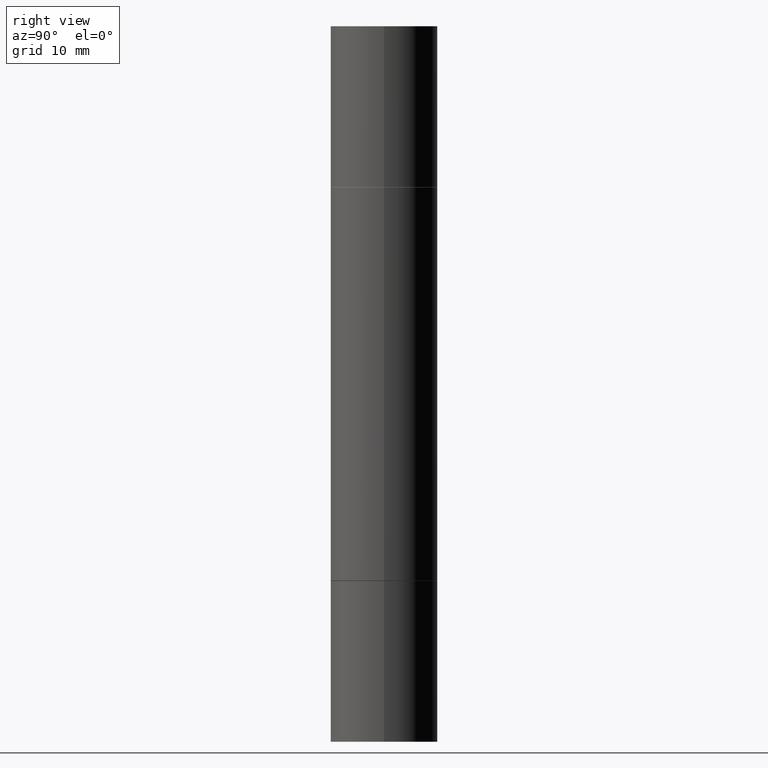
[diagram: clean part render]
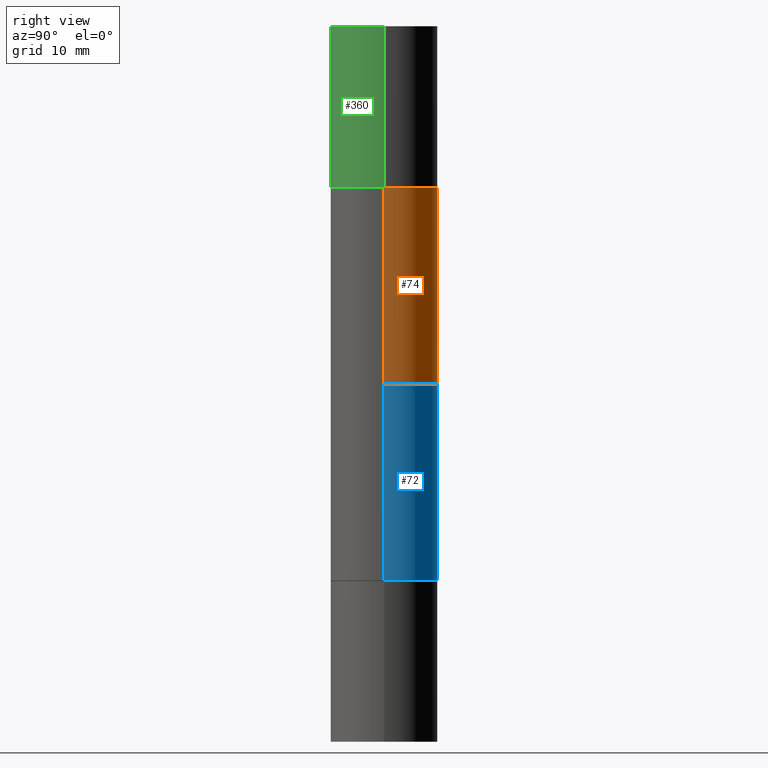
[diagram: same view with three faces highlighted in distinct colors, each labeled with its STEP entity id]
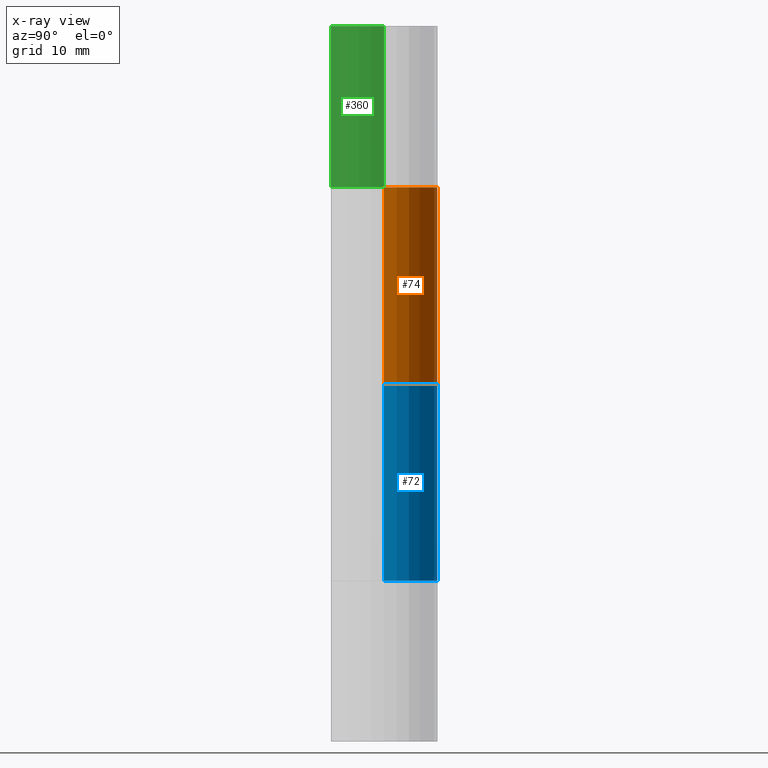
[diagram: x-ray of the same camera — body ghosted, the three highlighted faces saturated]
A machine part, right view with three faces highlighted in distinct colors.
The next image is the same camera in x-ray (body ghosted, the three faces saturated) — at least one of them is partly hidden behind the body in this view.
Their STEP definitions:

[orange] entity #74 — the highlighted cylindrical surface (partial cylindrical patch) has radius 4.7625 mm, axis along (-0, -0, -1).
#15 = DIRECTION ( 'NONE',  ( 1.000000000000000000, -6.982962677686266711E-15, 0.000000000000000000 ) ) ;
#30 = DIRECTION ( 'NONE',  ( -2.445468806185136597E-29, -3.492890411551752677E-15, -1.000000000000000000 ) ) ;
#44 = LINE ( 'NONE', #402, #575 ) ;
#74 = ADVANCED_FACE ( 'NONE', ( #556 ), #290, .T. ) ;
#78 = CARTESIAN_POINT ( 'NONE',  ( 0.000000000000000000, -8.730464687993621641E-15, -2.499999999999999556 ) ) ;
#93 = AXIS2_PLACEMENT_3D ( 'NONE', #78, #30, #665 ) ;
#102 = CARTESIAN_POINT ( 'NONE',  ( 0.1875000000000000278, -3.274041462884052574E-15, -0.5629999999999997229 ) ) ;
#126 = VERTEX_POINT ( 'NONE', #405 ) ;
#153 = EDGE_CURVE ( 'NONE', #217, #451, #540, .T. ) ;
#180 = CARTESIAN_POINT ( 'NONE',  ( 0.1874999999999999167, -1.003977019005979665E-14, -2.499999999999999556 ) ) ;
#182 = EDGE_CURVE ( 'NONE', #522, #451, #643, .T. ) ;
#200 = CARTESIAN_POINT ( 'NONE',  ( 3.056836007731420185E-29, -4.364351673553931682E-15, -1.249999999999999778 ) ) ;
#217 = VERTEX_POINT ( 'NONE', #590 ) ;
#257 = EDGE_CURVE ( 'NONE', #522, #126, #417, .T. ) ;
#290 = CYLINDRICAL_SURFACE ( 'NONE', #93, 0.1874999999999999167 ) ;
#306 = DIRECTION ( 'NONE',  ( -2.445468806185136877E-29, -3.492890411551753071E-15, -1.000000000000000000 ) ) ;
#309 = ORIENTED_EDGE ( 'NONE', *, *, #551, .F. ) ;
#350 = DIRECTION ( 'NONE',  ( 0.000000000000000000, 1.000000000000000000, -2.913971193241881950E-15 ) ) ;
#395 = AXIS2_PLACEMENT_3D ( 'NONE', #424, #544, #15 ) ;
#397 = ORIENTED_EDGE ( 'NONE', *, *, #153, .F. ) ;
#402 = CARTESIAN_POINT ( 'NONE',  ( -0.1874999999999999167, -7.444121313411459473E-15, -2.499999999999999556 ) ) ;
#403 = ORIENTED_EDGE ( 'NONE', *, *, #182, .T. ) ;
#405 = CARTESIAN_POINT ( 'NONE',  ( -0.1875000000000000278, -6.783925862357143136E-16, -0.5629999999999997229 ) ) ;
#417 = CIRCLE ( 'NONE', #395, 0.1875000000000000278 ) ;
#424 = CARTESIAN_POINT ( 'NONE',  ( 4.736873077580609355E-29, -1.964735960817877172E-15, -0.5629999999999997229 ) ) ;
#440 = ORIENTED_EDGE ( 'NONE', *, *, #257, .F. ) ;
#451 = VERTEX_POINT ( 'NONE', #498 ) ;
#454 = DIRECTION ( 'NONE',  ( -0.000000000000000000, -3.492185875197449130E-15, -1.000000000000000000 ) ) ;
#463 = EDGE_LOOP ( 'NONE', ( #309, #440, #403, #397 ) ) ;
#498 = CARTESIAN_POINT ( 'NONE',  ( 0.1874999999999999167, -4.473849319252078646E-15, -1.249999999999999778 ) ) ;
#506 = VECTOR ( 'NONE', #654, 39.37007874015748143 ) ;
#522 = VERTEX_POINT ( 'NONE', #102 ) ;
#540 = CIRCLE ( 'NONE', #669, 0.1874999999999999167 ) ;
#544 = DIRECTION ( 'NONE',  ( 2.445468806185136597E-29, 3.492890411551752677E-15, 1.000000000000000000 ) ) ;
#551 = EDGE_CURVE ( 'NONE', #126, #217, #44, .T. ) ;
#556 = FACE_OUTER_BOUND ( 'NONE', #463, .T. ) ;
#575 = VECTOR ( 'NONE', #306, 39.37007874015748143 ) ;
#590 = CARTESIAN_POINT ( 'NONE',  ( -0.1874999999999999167, -1.878200442603741470E-15, -1.249999999999999778 ) ) ;
#643 = LINE ( 'NONE', #180, #506 ) ;
#654 = DIRECTION ( 'NONE',  ( -2.445468806185136877E-29, -3.492890411551753071E-15, -1.000000000000000000 ) ) ;
#665 = DIRECTION ( 'NONE',  ( 1.000000000000000000, -6.982962677686270655E-15, 0.000000000000000000 ) ) ;
#669 = AXIS2_PLACEMENT_3D ( 'NONE', #200, #454, #350 ) ;

[blue] entity #72 — the highlighted cylindrical surface (partial cylindrical patch) has radius 4.7625 mm, axis along (-0, -0, -1).
#8 = CIRCLE ( 'NONE', #151, 0.1875000000000000278 ) ;
#41 = LINE ( 'NONE', #367, #250 ) ;
#72 = ADVANCED_FACE ( 'NONE', ( #243 ), #136, .T. ) ;
#79 = AXIS2_PLACEMENT_3D ( 'NONE', #562, #163, #359 ) ;
#107 = DIRECTION ( 'NONE',  ( -2.445468806185136877E-29, -3.492890411551753071E-15, -1.000000000000000000 ) ) ;
#113 = VERTEX_POINT ( 'NONE', #303 ) ;
#134 = VERTEX_POINT ( 'NONE', #421 ) ;
#136 = CYLINDRICAL_SURFACE ( 'NONE', #624, 0.1874999999999999167 ) ;
#142 = DIRECTION ( 'NONE',  ( -2.445468806185136597E-29, -3.492890411551752677E-15, -1.000000000000000000 ) ) ;
#151 = AXIS2_PLACEMENT_3D ( 'NONE', #549, #293, #287 ) ;
#163 = DIRECTION ( 'NONE',  ( -2.445468806185136597E-29, 3.491481338843145583E-15, 1.000000000000000000 ) ) ;
#243 = FACE_OUTER_BOUND ( 'NONE', #363, .T. ) ;
#250 = VECTOR ( 'NONE', #107, 39.37007874015748143 ) ;
#255 = CARTESIAN_POINT ( 'NONE',  ( -0.1875000000000000278, -6.783925862357143136E-16, -0.5629999999999997229 ) ) ;
#261 = ORIENTED_EDGE ( 'NONE', *, *, #391, .F. ) ;
#263 = CARTESIAN_POINT ( 'NONE',  ( 0.1875000000000000278, -8.072304855405348046E-15, -1.936999999999999833 ) ) ;
#265 = ORIENTED_EDGE ( 'NONE', *, *, #514, .T. ) ;
#287 = DIRECTION ( 'NONE',  ( 1.000000000000000000, -6.982962677686266711E-15, 0.000000000000000000 ) ) ;
#293 = DIRECTION ( 'NONE',  ( 2.445468806185136597E-29, 3.492890411551752677E-15, 1.000000000000000000 ) ) ;
#298 = LINE ( 'NONE', #455, #344 ) ;
#303 = CARTESIAN_POINT ( 'NONE',  ( -0.1874999999999999722, -3.078008298971767937E-15, -1.936999999999999833 ) ) ;
#344 = VECTOR ( 'NONE', #505, 39.37007874015748143 ) ;
#359 = DIRECTION ( 'NONE',  ( 1.000000000000000000, -6.982962677686266711E-15, 0.000000000000000000 ) ) ;
#363 = EDGE_LOOP ( 'NONE', ( #639, #261, #265, #370 ) ) ;
#367 = CARTESIAN_POINT ( 'NONE',  ( 0.1874999999999999167, -1.003977019005979665E-14, -2.499999999999999556 ) ) ;
#370 = ORIENTED_EDGE ( 'NONE', *, *, #626, .T. ) ;
#375 = CIRCLE ( 'NONE', #79, 0.1875000000000000278 ) ;
#391 = EDGE_CURVE ( 'NONE', #134, #629, #8, .T. ) ;
#421 = CARTESIAN_POINT ( 'NONE',  ( 0.1875000000000000278, -3.274041462884052574E-15, -0.5629999999999997229 ) ) ;
#442 = CARTESIAN_POINT ( 'NONE',  ( 0.000000000000000000, -8.730464687993621641E-15, -2.499999999999999556 ) ) ;
#444 = DIRECTION ( 'NONE',  ( 1.000000000000000000, -6.982962677686270655E-15, 0.000000000000000000 ) ) ;
#455 = CARTESIAN_POINT ( 'NONE',  ( -0.1874999999999999167, -7.444121313411459473E-15, -2.499999999999999556 ) ) ;
#479 = EDGE_CURVE ( 'NONE', #629, #113, #298, .T. ) ;
#505 = DIRECTION ( 'NONE',  ( -2.445468806185136877E-29, -3.492890411551753071E-15, -1.000000000000000000 ) ) ;
#514 = EDGE_CURVE ( 'NONE', #134, #520, #41, .T. ) ;
#520 = VERTEX_POINT ( 'NONE', #263 ) ;
#549 = CARTESIAN_POINT ( 'NONE',  ( 4.736873077580609355E-29, -1.964735960817877172E-15, -0.5629999999999997229 ) ) ;
#562 = CARTESIAN_POINT ( 'NONE',  ( 4.736873077580609355E-29, -6.762999353339172249E-15, -1.936999999999999833 ) ) ;
#624 = AXIS2_PLACEMENT_3D ( 'NONE', #442, #142, #444 ) ;
#626 = EDGE_CURVE ( 'NONE', #520, #113, #375, .T. ) ;
#629 = VERTEX_POINT ( 'NONE', #255 ) ;
#639 = ORIENTED_EDGE ( 'NONE', *, *, #479, .F. ) ;

[green] entity #360 — the highlighted cylindrical surface (partial cylindrical patch) has radius 4.7625 mm, axis along (-0, -0, -1).
#4 = ORIENTED_EDGE ( 'NONE', *, *, #538, .T. ) ;
#10 = LINE ( 'NONE', #581, #45 ) ;
#45 = VECTOR ( 'NONE', #119, 39.37007874015748143 ) ;
#82 = DIRECTION ( 'NONE',  ( 1.000000000000000000, -6.982962677686266711E-15, 0.000000000000000000 ) ) ;
#86 = CARTESIAN_POINT ( 'NONE',  ( -0.1875000000000000278, 3.066025098218802702E-16, -0.5619999999999996110 ) ) ;
#90 = DIRECTION ( 'NONE',  ( -2.445468806185136597E-29, -3.492890411551752677E-15, -1.000000000000000000 ) ) ;
#97 = DIRECTION ( 'NONE',  ( -2.445468806185136877E-29, -3.492890411551753071E-15, -1.000000000000000000 ) ) ;
#119 = DIRECTION ( 'NONE',  ( -2.445468806185136877E-29, -3.492890411551753071E-15, -1.000000000000000000 ) ) ;
#138 = CARTESIAN_POINT ( 'NONE',  ( -0.1875000000000000278, 3.066025098218802702E-16, 5.463695987328561936E-16 ) ) ;
#141 = ORIENTED_EDGE ( 'NONE', *, *, #578, .F. ) ;
#148 = CARTESIAN_POINT ( 'NONE',  ( -0.1875000000000000278, -7.444121313411457895E-15, -2.499999999999999556 ) ) ;
#154 = CARTESIAN_POINT ( 'NONE',  ( 4.739318546386794397E-29, -1.961243070406324635E-15, -0.5619999999999996110 ) ) ;
#189 = EDGE_LOOP ( 'NONE', ( #141, #4, #210, #357 ) ) ;
#198 = VECTOR ( 'NONE', #97, 39.37007874015748143 ) ;
#210 = ORIENTED_EDGE ( 'NONE', *, *, #615, .T. ) ;
#212 = DIRECTION ( 'NONE',  ( 1.000000000000000000, -6.982962677686265922E-15, 0.000000000000000000 ) ) ;
#262 = VERTEX_POINT ( 'NONE', #331 ) ;
#323 = CIRCLE ( 'NONE', #659, 0.1875000000000000278 ) ;
#331 = CARTESIAN_POINT ( 'NONE',  ( 0.1875000000000000278, -1.307544161180414563E-15, 5.463695987328526437E-16 ) ) ;
#339 = EDGE_CURVE ( 'NONE', #262, #371, #10, .T. ) ;
#356 = LINE ( 'NONE', #148, #198 ) ;
#357 = ORIENTED_EDGE ( 'NONE', *, *, #339, .F. ) ;
#360 = ADVANCED_FACE ( 'NONE', ( #390 ), #387, .T. ) ;
#371 = VERTEX_POINT ( 'NONE', #439 ) ;
#387 = CYLINDRICAL_SURFACE ( 'NONE', #516, 0.1875000000000000278 ) ;
#390 = FACE_OUTER_BOUND ( 'NONE', #189, .T. ) ;
#420 = VERTEX_POINT ( 'NONE', #138 ) ;
#439 = CARTESIAN_POINT ( 'NONE',  ( 0.1875000000000000278, -3.270548572472500038E-15, -0.5619999999999996110 ) ) ;
#453 = VERTEX_POINT ( 'NONE', #86 ) ;
#464 = DIRECTION ( 'NONE',  ( 2.445468806185136597E-29, 3.492890411551752677E-15, 1.000000000000000000 ) ) ;
#466 = CARTESIAN_POINT ( 'NONE',  ( 6.113672015462842613E-29, 1.761340885760521790E-18, 5.463695987328526437E-16 ) ) ;
#494 = CARTESIAN_POINT ( 'NONE',  ( 0.000000000000000000, -8.730464687993621641E-15, -2.499999999999999556 ) ) ;
#513 = DIRECTION ( 'NONE',  ( 2.445468806185136597E-29, 3.492890411551752677E-15, 1.000000000000000000 ) ) ;
#516 = AXIS2_PLACEMENT_3D ( 'NONE', #494, #90, #82 ) ;
#529 = CIRCLE ( 'NONE', #679, 0.1875000000000000278 ) ;
#538 = EDGE_CURVE ( 'NONE', #420, #453, #356, .T. ) ;
#566 = DIRECTION ( 'NONE',  ( 1.000000000000000000, -6.982962677686266711E-15, 0.000000000000000000 ) ) ;
#578 = EDGE_CURVE ( 'NONE', #420, #262, #323, .T. ) ;
#581 = CARTESIAN_POINT ( 'NONE',  ( 0.1875000000000000278, -1.003977019005979665E-14, -2.499999999999999556 ) ) ;
#615 = EDGE_CURVE ( 'NONE', #453, #371, #529, .T. ) ;
#659 = AXIS2_PLACEMENT_3D ( 'NONE', #466, #513, #212 ) ;
#679 = AXIS2_PLACEMENT_3D ( 'NONE', #154, #464, #566 ) ;